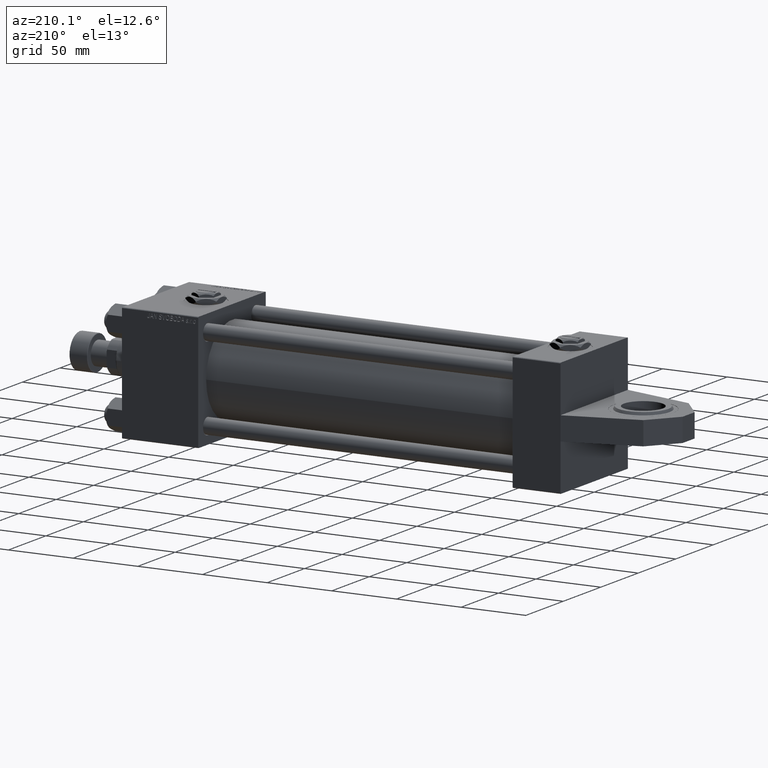
[diagram: clean part render]
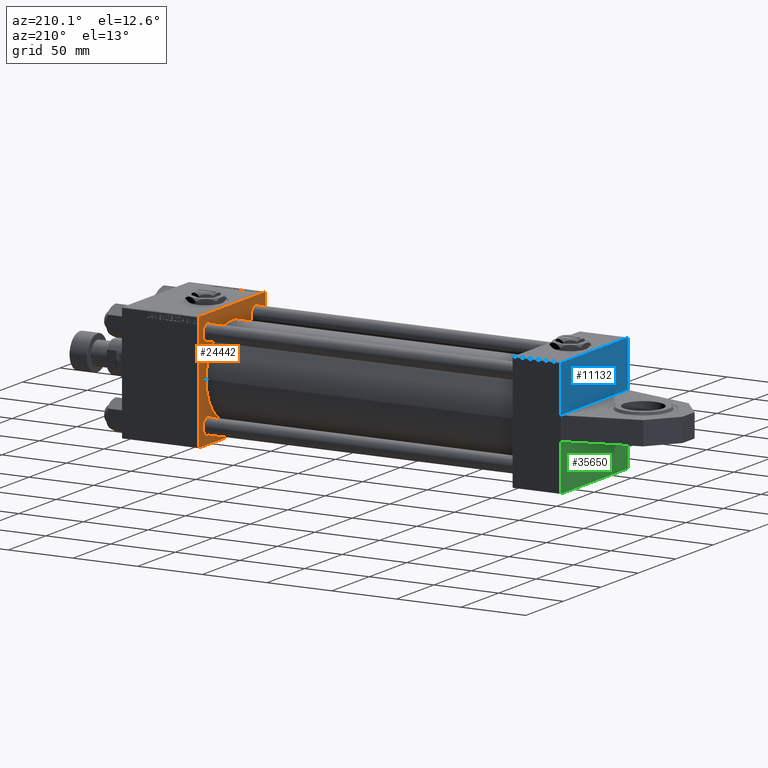
[diagram: same view with three faces highlighted in distinct colors, each labeled with its STEP entity id]
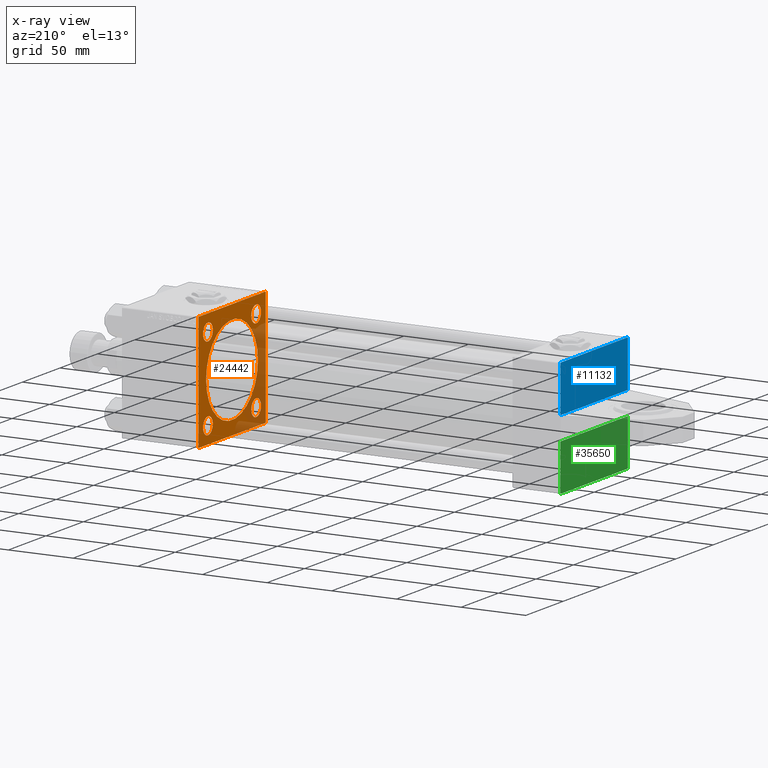
[diagram: x-ray of the same camera — body ghosted, the three highlighted faces saturated]
A machine part, auxiliary view with three faces highlighted in distinct colors.
The next image is the same camera in x-ray (body ghosted, the three faces saturated) — at least one of them is partly hidden behind the body in this view.
Their STEP definitions:

[orange] entity #24442 — the highlighted planar face has unit normal (-1, 0, 0).
#48 = VECTOR ( 'NONE', #40157, 999.9999999999998863 ) ;
#234 = CARTESIAN_POINT ( 'NONE',  ( 279.9999999999999432, 32.14999999999999147, -32.15000000000000568 ) ) ;
#705 = DIRECTION ( 'NONE',  ( 0.000000000000000000, 0.000000000000000000, 1.000000000000000000 ) ) ;
#901 = CIRCLE ( 'NONE', #43501, 34.50000000000000000 ) ;
#906 = ORIENTED_EDGE ( 'NONE', *, *, #39818, .T. ) ;
#1400 = EDGE_CURVE ( 'NONE', #43667, #47262, #18811, .T. ) ;
#2172 = ORIENTED_EDGE ( 'NONE', *, *, #45619, .T. ) ;
#2404 = DIRECTION ( 'NONE',  ( -0.000000000000000000, 0.000000000000000000, 1.000000000000000000 ) ) ;
#2462 = CARTESIAN_POINT ( 'NONE',  ( 279.9999999999999432, 1.622946243093158675E-15, -34.50000000000000000 ) ) ;
#2802 = LINE ( 'NONE', #27844, #51185 ) ;
#2904 = AXIS2_PLACEMENT_3D ( 'NONE', #34421, #46669, #39220 ) ;
#3422 = DIRECTION ( 'NONE',  ( 0.000000000000000000, 0.000000000000000000, -1.000000000000000000 ) ) ;
#3734 = CIRCLE ( 'NONE', #2904, 6.499999999999950262 ) ;
#3994 = EDGE_CURVE ( 'NONE', #47262, #14294, #27886, .T. ) ;
#5063 = FACE_BOUND ( 'NONE', #8463, .T. ) ;
#5587 = FACE_BOUND ( 'NONE', #47899, .T. ) ;
#5701 = DIRECTION ( 'NONE',  ( 0.000000000000000000, 0.7071067811865474617, -0.7071067811865474617 ) ) ;
#5934 = CARTESIAN_POINT ( 'NONE',  ( 279.9999999999999432, 32.14999999999999147, 25.65000000000005542 ) ) ;
#6033 = VERTEX_POINT ( 'NONE', #33334 ) ;
#6357 = CIRCLE ( 'NONE', #13137, 6.499999999999950262 ) ;
#6395 = VERTEX_POINT ( 'NONE', #40502 ) ;
#8463 = EDGE_LOOP ( 'NONE', ( #32519, #9893 ) ) ;
#8772 = EDGE_CURVE ( 'NONE', #31779, #49852, #18707, .T. ) ;
#9331 = DIRECTION ( 'NONE',  ( 0.000000000000000000, 0.000000000000000000, 1.000000000000000000 ) ) ;
#9655 = ORIENTED_EDGE ( 'NONE', *, *, #36992, .T. ) ;
#9893 = ORIENTED_EDGE ( 'NONE', *, *, #52363, .T. ) ;
#10071 = VERTEX_POINT ( 'NONE', #34544 ) ;
#10101 = PLANE ( 'NONE',  #34512 ) ;
#10115 = ORIENTED_EDGE ( 'NONE', *, *, #15650, .T. ) ;
#10124 = ORIENTED_EDGE ( 'NONE', *, *, #1400, .T. ) ;
#10393 = EDGE_LOOP ( 'NONE', ( #20154, #17511 ) ) ;
#11160 = DIRECTION ( 'NONE',  ( 0.000000000000000000, 0.000000000000000000, -1.000000000000000000 ) ) ;
#11192 = EDGE_CURVE ( 'NONE', #49852, #31779, #901, .T. ) ;
#11374 = ORIENTED_EDGE ( 'NONE', *, *, #3994, .T. ) ;
#11418 = LINE ( 'NONE', #38944, #16195 ) ;
#12345 = LINE ( 'NONE', #45144, #27456 ) ;
#12380 = CARTESIAN_POINT ( 'NONE',  ( 279.9999999999999432, -45.00000000000000000, 44.99999999999998579 ) ) ;
#12815 = CARTESIAN_POINT ( 'NONE',  ( 279.9999999999999432, -32.15000000000001279, -32.15000000000000568 ) ) ;
#13043 = FACE_BOUND ( 'NONE', #50534, .T. ) ;
#13137 = AXIS2_PLACEMENT_3D ( 'NONE', #27721, #36251, #39210 ) ;
#13534 = LINE ( 'NONE', #46073, #36129 ) ;
#13646 = EDGE_LOOP ( 'NONE', ( #9655, #50066 ) ) ;
#14074 = DIRECTION ( 'NONE',  ( 0.000000000000000000, 0.000000000000000000, 1.000000000000000000 ) ) ;
#14095 = DIRECTION ( 'NONE',  ( 0.000000000000000000, 0.000000000000000000, 1.000000000000000000 ) ) ;
#14294 = VERTEX_POINT ( 'NONE', #22006 ) ;
#14795 = CARTESIAN_POINT ( 'NONE',  ( 279.9999999999999432, 44.50000000000001421, -45.00000000000000000 ) ) ;
#14926 = EDGE_CURVE ( 'NONE', #51427, #6395, #19768, .T. ) ;
#15081 = CARTESIAN_POINT ( 'NONE',  ( 279.9999999999999432, -44.74999999999968736, -44.75000000000031264 ) ) ;
#15268 = CARTESIAN_POINT ( 'NONE',  ( 279.9999999999999432, -32.14999999999999147, 38.64999999999994174 ) ) ;
#15445 = VERTEX_POINT ( 'NONE', #41442 ) ;
#15650 = EDGE_CURVE ( 'NONE', #34557, #33022, #25747, .T. ) ;
#15877 = CARTESIAN_POINT ( 'NONE',  ( 279.9999999999999432, -32.14999999999999147, 25.65000000000004121 ) ) ;
#16075 = DIRECTION ( 'NONE',  ( -0.000000000000000000, 0.7071067811865474617, 0.7071067811865474617 ) ) ;
#16195 = VECTOR ( 'NONE', #11160, 1000.000000000000000 ) ;
#16204 = DIRECTION ( 'NONE',  ( 0.000000000000000000, 0.000000000000000000, -1.000000000000000000 ) ) ;
#16326 = VERTEX_POINT ( 'NONE', #48038 ) ;
#16401 = AXIS2_PLACEMENT_3D ( 'NONE', #30632, #47415, #14095 ) ;
#17511 = ORIENTED_EDGE ( 'NONE', *, *, #8772, .T. ) ;
#18076 = CARTESIAN_POINT ( 'NONE',  ( 279.9999999999999432, 32.14999999999999147, 32.15000000000000568 ) ) ;
#18707 = CIRCLE ( 'NONE', #41693, 34.50000000000000000 ) ;
#18811 = LINE ( 'NONE', #51333, #42559 ) ;
#18836 = VECTOR ( 'NONE', #5701, 1000.000000000000114 ) ;
#18934 = EDGE_LOOP ( 'NONE', ( #10124, #11374, #40816, #19046, #33303, #906, #37014, #2172 ) ) ;
#19046 = ORIENTED_EDGE ( 'NONE', *, *, #34707, .T. ) ;
#19144 = EDGE_CURVE ( 'NONE', #16326, #6033, #26636, .T. ) ;
#19768 = CIRCLE ( 'NONE', #37687, 6.499999999999950262 ) ;
#20154 = ORIENTED_EDGE ( 'NONE', *, *, #11192, .T. ) ;
#20875 = CIRCLE ( 'NONE', #48122, 6.499999999999895195 ) ;
#21316 = FACE_BOUND ( 'NONE', #10393, .T. ) ;
#21627 = ORIENTED_EDGE ( 'NONE', *, *, #44485, .T. ) ;
#21919 = VERTEX_POINT ( 'NONE', #34801 ) ;
#22006 = CARTESIAN_POINT ( 'NONE',  ( 279.9999999999999432, -44.99999999999999289, -44.49999999999997158 ) ) ;
#22391 = CIRCLE ( 'NONE', #31753, 6.499999999999895195 ) ;
#23033 = AXIS2_PLACEMENT_3D ( 'NONE', #234, #28480, #48203 ) ;
#24366 = DIRECTION ( 'NONE',  ( 0.000000000000000000, -1.000000000000000000, -1.541976423090495140E-16 ) ) ;
#24442 = ADVANCED_FACE ( 'NONE', ( #13043, #5587, #41590, #5063, #21316, #33596 ), #10101, .T. ) ;
#25222 = CARTESIAN_POINT ( 'NONE',  ( 279.9999999999999432, -32.15000000000001279, -32.15000000000000568 ) ) ;
#25747 = CIRCLE ( 'NONE', #47891, 6.499999999999950262 ) ;
#26636 = CIRCLE ( 'NONE', #16401, 6.499999999999888090 ) ;
#26923 = CARTESIAN_POINT ( 'NONE',  ( 279.9999999999999432, 0.000000000000000000, 0.000000000000000000 ) ) ;
#26931 = ORIENTED_EDGE ( 'NONE', *, *, #14926, .T. ) ;
#27456 = VECTOR ( 'NONE', #24366, 1000.000000000000000 ) ;
#27524 = CARTESIAN_POINT ( 'NONE',  ( 279.9999999999999432, -32.15000000000001279, -38.64999999999989910 ) ) ;
#27721 = CARTESIAN_POINT ( 'NONE',  ( 279.9999999999999432, -32.14999999999999147, 32.14999999999999147 ) ) ;
#27844 = CARTESIAN_POINT ( 'NONE',  ( 279.9999999999999432, -44.75000000000001421, 44.75000000000001421 ) ) ;
#27886 = LINE ( 'NONE', #15081, #48 ) ;
#28480 = DIRECTION ( 'NONE',  ( 1.000000000000000000, 0.000000000000000000, 0.000000000000000000 ) ) ;
#29949 = VERTEX_POINT ( 'NONE', #51402 ) ;
#30632 = CARTESIAN_POINT ( 'NONE',  ( 279.9999999999999432, 32.14999999999999147, -32.15000000000000568 ) ) ;
#30723 = CIRCLE ( 'NONE', #23033, 6.499999999999888090 ) ;
#31455 = ORIENTED_EDGE ( 'NONE', *, *, #47208, .T. ) ;
#31753 = AXIS2_PLACEMENT_3D ( 'NONE', #25222, #36719, #705 ) ;
#31779 = VERTEX_POINT ( 'NONE', #2462 ) ;
#32519 = ORIENTED_EDGE ( 'NONE', *, *, #42575, .T. ) ;
#32874 = EDGE_CURVE ( 'NONE', #21919, #14294, #36418, .T. ) ;
#33022 = VERTEX_POINT ( 'NONE', #15268 ) ;
#33303 = ORIENTED_EDGE ( 'NONE', *, *, #41837, .F. ) ;
#33334 = CARTESIAN_POINT ( 'NONE',  ( 279.9999999999999432, 32.14999999999999147, -25.65000000000011582 ) ) ;
#33596 = FACE_OUTER_BOUND ( 'NONE', #18934, .T. ) ;
#33972 = LINE ( 'NONE', #46491, #18836 ) ;
#34421 = CARTESIAN_POINT ( 'NONE',  ( 279.9999999999999432, 32.14999999999999147, 32.15000000000000568 ) ) ;
#34512 = AXIS2_PLACEMENT_3D ( 'NONE', #26923, #34924, #2404 ) ;
#34544 = CARTESIAN_POINT ( 'NONE',  ( 279.9999999999999432, -32.15000000000001279, -25.65000000000010871 ) ) ;
#34557 = VERTEX_POINT ( 'NONE', #15877 ) ;
#34635 = DIRECTION ( 'NONE',  ( -0.000000000000000000, -0.7071067811865474617, -0.7071067811865474617 ) ) ;
#34707 = EDGE_CURVE ( 'NONE', #21919, #48527, #2802, .T. ) ;
#34801 = CARTESIAN_POINT ( 'NONE',  ( 279.9999999999999432, -45.00000000000000000, 44.50000000000004263 ) ) ;
#34924 = DIRECTION ( 'NONE',  ( -1.000000000000000000, 0.000000000000000000, -0.000000000000000000 ) ) ;
#36129 = VECTOR ( 'NONE', #34635, 1000.000000000000114 ) ;
#36251 = DIRECTION ( 'NONE',  ( 1.000000000000000000, 0.000000000000000000, 0.000000000000000000 ) ) ;
#36418 = LINE ( 'NONE', #12380, #45705 ) ;
#36596 = DIRECTION ( 'NONE',  ( 0.000000000000000000, 0.000000000000000000, 1.000000000000000000 ) ) ;
#36719 = DIRECTION ( 'NONE',  ( 1.000000000000000000, 0.000000000000000000, 0.000000000000000000 ) ) ;
#36747 = CARTESIAN_POINT ( 'NONE',  ( 279.9999999999999432, -2.602085213965210642E-15, 0.000000000000000000 ) ) ;
#36775 = CARTESIAN_POINT ( 'NONE',  ( 279.9999999999999432, -2.602085213965210642E-15, 0.000000000000000000 ) ) ;
#36870 = EDGE_CURVE ( 'NONE', #29949, #15445, #11418, .T. ) ;
#36992 = EDGE_CURVE ( 'NONE', #6033, #16326, #30723, .T. ) ;
#37014 = ORIENTED_EDGE ( 'NONE', *, *, #36870, .T. ) ;
#37219 = DIRECTION ( 'NONE',  ( 0.000000000000000000, 7.709882115452478166E-17, -1.000000000000000000 ) ) ;
#37567 = CARTESIAN_POINT ( 'NONE',  ( 279.9999999999999432, -44.49999999999995737, -45.00000000000000000 ) ) ;
#37687 = AXIS2_PLACEMENT_3D ( 'NONE', #18076, #50602, #14074 ) ;
#38791 = CARTESIAN_POINT ( 'NONE',  ( 279.9999999999999432, 44.49999999999995737, 45.00000000000000000 ) ) ;
#38944 = CARTESIAN_POINT ( 'NONE',  ( 279.9999999999999432, 45.00000000000001421, 45.00000000000000000 ) ) ;
#39210 = DIRECTION ( 'NONE',  ( 0.000000000000000000, 0.000000000000000000, 1.000000000000000000 ) ) ;
#39220 = DIRECTION ( 'NONE',  ( 0.000000000000000000, 0.000000000000000000, 1.000000000000000000 ) ) ;
#39811 = VERTEX_POINT ( 'NONE', #38791 ) ;
#39818 = EDGE_CURVE ( 'NONE', #39811, #29949, #33972, .T. ) ;
#39822 = CARTESIAN_POINT ( 'NONE',  ( 279.9999999999999432, -2.602085213965210642E-15, 34.50000000000000000 ) ) ;
#40157 = DIRECTION ( 'NONE',  ( 0.000000000000000000, -0.7071067811865525687, 0.7071067811865425767 ) ) ;
#40502 = CARTESIAN_POINT ( 'NONE',  ( 279.9999999999999432, 32.14999999999999147, 38.64999999999995595 ) ) ;
#40816 = ORIENTED_EDGE ( 'NONE', *, *, #32874, .F. ) ;
#40855 = CARTESIAN_POINT ( 'NONE',  ( 279.9999999999999432, -32.14999999999999147, 32.14999999999999147 ) ) ;
#41442 = CARTESIAN_POINT ( 'NONE',  ( 279.9999999999999432, 45.00000000000001421, -44.49999999999997158 ) ) ;
#41590 = FACE_BOUND ( 'NONE', #13646, .T. ) ;
#41693 = AXIS2_PLACEMENT_3D ( 'NONE', #36775, #48215, #16204 ) ;
#41837 = EDGE_CURVE ( 'NONE', #39811, #48527, #12345, .T. ) ;
#42559 = VECTOR ( 'NONE', #46551, 1000.000000000000000 ) ;
#42575 = EDGE_CURVE ( 'NONE', #10071, #44284, #22391, .T. ) ;
#43501 = AXIS2_PLACEMENT_3D ( 'NONE', #36747, #48186, #3422 ) ;
#43667 = VERTEX_POINT ( 'NONE', #14795 ) ;
#44284 = VERTEX_POINT ( 'NONE', #27524 ) ;
#44485 = EDGE_CURVE ( 'NONE', #6395, #51427, #3734, .T. ) ;
#44957 = CARTESIAN_POINT ( 'NONE',  ( 279.9999999999999432, -44.50000000000002842, 44.99999999999998579 ) ) ;
#45144 = CARTESIAN_POINT ( 'NONE',  ( 279.9999999999999432, 45.00000000000001421, 45.00000000000000000 ) ) ;
#45619 = EDGE_CURVE ( 'NONE', #15445, #43667, #13534, .T. ) ;
#45705 = VECTOR ( 'NONE', #37219, 1000.000000000000000 ) ;
#46073 = CARTESIAN_POINT ( 'NONE',  ( 279.9999999999999432, 44.75000000000000000, -44.75000000000000000 ) ) ;
#46491 = CARTESIAN_POINT ( 'NONE',  ( 279.9999999999999432, 44.74999999999997158, 44.74999999999997158 ) ) ;
#46551 = DIRECTION ( 'NONE',  ( 0.000000000000000000, -1.000000000000000000, 0.000000000000000000 ) ) ;
#46669 = DIRECTION ( 'NONE',  ( 1.000000000000000000, 0.000000000000000000, 0.000000000000000000 ) ) ;
#47208 = EDGE_CURVE ( 'NONE', #33022, #34557, #6357, .T. ) ;
#47262 = VERTEX_POINT ( 'NONE', #37567 ) ;
#47415 = DIRECTION ( 'NONE',  ( 1.000000000000000000, 0.000000000000000000, 0.000000000000000000 ) ) ;
#47891 = AXIS2_PLACEMENT_3D ( 'NONE', #40855, #52306, #36596 ) ;
#47899 = EDGE_LOOP ( 'NONE', ( #21627, #26931 ) ) ;
#48038 = CARTESIAN_POINT ( 'NONE',  ( 279.9999999999999432, 32.14999999999999147, -38.64999999999989200 ) ) ;
#48122 = AXIS2_PLACEMENT_3D ( 'NONE', #12815, #49342, #9331 ) ;
#48186 = DIRECTION ( 'NONE',  ( 1.000000000000000000, 0.000000000000000000, 0.000000000000000000 ) ) ;
#48203 = DIRECTION ( 'NONE',  ( 0.000000000000000000, 0.000000000000000000, 1.000000000000000000 ) ) ;
#48215 = DIRECTION ( 'NONE',  ( 1.000000000000000000, 0.000000000000000000, 0.000000000000000000 ) ) ;
#48527 = VERTEX_POINT ( 'NONE', #44957 ) ;
#49342 = DIRECTION ( 'NONE',  ( 1.000000000000000000, 0.000000000000000000, 0.000000000000000000 ) ) ;
#49852 = VERTEX_POINT ( 'NONE', #39822 ) ;
#50066 = ORIENTED_EDGE ( 'NONE', *, *, #19144, .T. ) ;
#50534 = EDGE_LOOP ( 'NONE', ( #31455, #10115 ) ) ;
#50602 = DIRECTION ( 'NONE',  ( 1.000000000000000000, 0.000000000000000000, 0.000000000000000000 ) ) ;
#51185 = VECTOR ( 'NONE', #16075, 1000.000000000000114 ) ;
#51333 = CARTESIAN_POINT ( 'NONE',  ( 279.9999999999999432, 45.00000000000001421, -45.00000000000000000 ) ) ;
#51402 = CARTESIAN_POINT ( 'NONE',  ( 279.9999999999999432, 45.00000000000001421, 44.49999999999994316 ) ) ;
#51427 = VERTEX_POINT ( 'NONE', #5934 ) ;
#52306 = DIRECTION ( 'NONE',  ( 1.000000000000000000, 0.000000000000000000, 0.000000000000000000 ) ) ;
#52363 = EDGE_CURVE ( 'NONE', #44284, #10071, #20875, .T. ) ;

[blue] entity #11132 — the highlighted planar face has unit normal (-1, 0, 0).
#2561 = DIRECTION ( 'NONE',  ( 0.000000000000000000, 0.7071067811865474617, -0.7071067811865474617 ) ) ;
#6182 = LINE ( 'NONE', #46439, #34629 ) ;
#6513 = CARTESIAN_POINT ( 'NONE',  ( 0.000000000000000000, 44.49999999999998579, -44.99999999999998579 ) ) ;
#7086 = LINE ( 'NONE', #27885, #29470 ) ;
#7659 = VERTEX_POINT ( 'NONE', #9294 ) ;
#7859 = DIRECTION ( 'NONE',  ( -0.000000000000000000, -0.7071067811865474617, -0.7071067811865474617 ) ) ;
#8128 = VERTEX_POINT ( 'NONE', #6513 ) ;
#9294 = CARTESIAN_POINT ( 'NONE',  ( 0.000000000000000000, 44.99999999999998579, -44.49999999999995737 ) ) ;
#11132 = ADVANCED_FACE ( 'NONE', ( #12182 ), #52703, .T. ) ;
#12182 = FACE_OUTER_BOUND ( 'NONE', #21641, .T. ) ;
#14207 = EDGE_CURVE ( 'NONE', #21255, #46996, #48953, .T. ) ;
#15287 = EDGE_CURVE ( 'NONE', #16226, #30410, #22814, .T. ) ;
#15458 = VECTOR ( 'NONE', #36987, 1000.000000000000000 ) ;
#15548 = LINE ( 'NONE', #27311, #23040 ) ;
#16226 = VERTEX_POINT ( 'NONE', #48618 ) ;
#19607 = LINE ( 'NONE', #19865, #25251 ) ;
#19865 = CARTESIAN_POINT ( 'NONE',  ( 0.000000000000000000, 44.99999999999998579, -44.99999999999998579 ) ) ;
#21255 = VERTEX_POINT ( 'NONE', #24818 ) ;
#21641 = EDGE_LOOP ( 'NONE', ( #46020, #50193, #32650, #42821, #34469, #22305 ) ) ;
#22305 = ORIENTED_EDGE ( 'NONE', *, *, #27634, .T. ) ;
#22814 = LINE ( 'NONE', #47333, #39404 ) ;
#23040 = VECTOR ( 'NONE', #43305, 1000.000000000000000 ) ;
#23937 = DIRECTION ( 'NONE',  ( -1.000000000000000000, 0.000000000000000000, -0.000000000000000000 ) ) ;
#24725 = AXIS2_PLACEMENT_3D ( 'NONE', #41000, #23937, #40480 ) ;
#24818 = CARTESIAN_POINT ( 'NONE',  ( 0.000000000000000000, 9.000000000000000000, 45.00000000000000000 ) ) ;
#25251 = VECTOR ( 'NONE', #52124, 1000.000000000000000 ) ;
#26720 = DIRECTION ( 'NONE',  ( 0.000000000000000000, -1.000000000000000000, -1.541976423090495387E-16 ) ) ;
#27311 = CARTESIAN_POINT ( 'NONE',  ( 0.000000000000000000, 44.99999999999998579, 45.00000000000001421 ) ) ;
#27634 = EDGE_CURVE ( 'NONE', #8128, #46996, #19607, .T. ) ;
#27885 = CARTESIAN_POINT ( 'NONE',  ( 0.000000000000000000, 44.74999999999998579, -44.74999999999998579 ) ) ;
#28361 = EDGE_CURVE ( 'NONE', #7659, #8128, #7086, .T. ) ;
#28919 = CARTESIAN_POINT ( 'NONE',  ( 0.000000000000000000, 44.99999999999998579, 44.50000000000001421 ) ) ;
#29470 = VECTOR ( 'NONE', #7859, 1000.000000000000114 ) ;
#30410 = VERTEX_POINT ( 'NONE', #28919 ) ;
#31748 = EDGE_CURVE ( 'NONE', #16226, #21255, #6182, .T. ) ;
#32650 = ORIENTED_EDGE ( 'NONE', *, *, #15287, .T. ) ;
#33939 = CARTESIAN_POINT ( 'NONE',  ( 0.000000000000000000, 9.000000000000000000, -45.00000000000000000 ) ) ;
#33955 = EDGE_CURVE ( 'NONE', #30410, #7659, #15548, .T. ) ;
#34469 = ORIENTED_EDGE ( 'NONE', *, *, #28361, .T. ) ;
#34629 = VECTOR ( 'NONE', #26720, 1000.000000000000000 ) ;
#36454 = CARTESIAN_POINT ( 'NONE',  ( 0.000000000000000000, 9.000000000000000000, 45.00000000000000000 ) ) ;
#36987 = DIRECTION ( 'NONE',  ( 0.000000000000000000, 0.000000000000000000, -1.000000000000000000 ) ) ;
#39404 = VECTOR ( 'NONE', #2561, 1000.000000000000114 ) ;
#40480 = DIRECTION ( 'NONE',  ( -0.000000000000000000, 0.000000000000000000, 1.000000000000000000 ) ) ;
#41000 = CARTESIAN_POINT ( 'NONE',  ( 0.000000000000000000, 0.000000000000000000, 0.000000000000000000 ) ) ;
#42821 = ORIENTED_EDGE ( 'NONE', *, *, #33955, .T. ) ;
#43305 = DIRECTION ( 'NONE',  ( 0.000000000000000000, 0.000000000000000000, -1.000000000000000000 ) ) ;
#46020 = ORIENTED_EDGE ( 'NONE', *, *, #14207, .F. ) ;
#46439 = CARTESIAN_POINT ( 'NONE',  ( 0.000000000000000000, 44.99999999999998579, 45.00000000000001421 ) ) ;
#46996 = VERTEX_POINT ( 'NONE', #33939 ) ;
#47333 = CARTESIAN_POINT ( 'NONE',  ( 0.000000000000000000, 44.74999999999999289, 44.74999999999999289 ) ) ;
#48618 = CARTESIAN_POINT ( 'NONE',  ( 0.000000000000000000, 44.49999999999998579, 45.00000000000001421 ) ) ;
#48953 = LINE ( 'NONE', #36454, #15458 ) ;
#50193 = ORIENTED_EDGE ( 'NONE', *, *, #31748, .F. ) ;
#52124 = DIRECTION ( 'NONE',  ( 0.000000000000000000, -1.000000000000000000, -1.541976423090495633E-16 ) ) ;
#52703 = PLANE ( 'NONE',  #24725 ) ;

[green] entity #35650 — the highlighted planar face has unit normal (-1, 0, 0).
#216 = VERTEX_POINT ( 'NONE', #43929 ) ;
#235 = LINE ( 'NONE', #28752, #16751 ) ;
#437 = CARTESIAN_POINT ( 'NONE',  ( 0.000000000000000000, -9.000000000000000000, 45.00000000000000000 ) ) ;
#532 = CARTESIAN_POINT ( 'NONE',  ( 0.000000000000000000, -44.74999999999998579, -44.74999999999998579 ) ) ;
#2329 = ORIENTED_EDGE ( 'NONE', *, *, #4524, .F. ) ;
#4524 = EDGE_CURVE ( 'NONE', #41640, #25734, #15314, .T. ) ;
#5201 = VECTOR ( 'NONE', #46352, 1000.000000000000114 ) ;
#8149 = CARTESIAN_POINT ( 'NONE',  ( 0.000000000000000000, -44.49999999999995737, 45.00000000000000000 ) ) ;
#8342 = LINE ( 'NONE', #40636, #28406 ) ;
#8758 = VERTEX_POINT ( 'NONE', #36507 ) ;
#9815 = LINE ( 'NONE', #532, #5201 ) ;
#10147 = DIRECTION ( 'NONE',  ( -0.000000000000000000, 0.000000000000000000, 1.000000000000000000 ) ) ;
#10543 = DIRECTION ( 'NONE',  ( 0.000000000000000000, -1.000000000000000000, -1.541976423090495387E-16 ) ) ;
#11993 = ORIENTED_EDGE ( 'NONE', *, *, #39087, .T. ) ;
#12132 = DIRECTION ( 'NONE',  ( 0.000000000000000000, 0.000000000000000000, -1.000000000000000000 ) ) ;
#12845 = VECTOR ( 'NONE', #10543, 1000.000000000000000 ) ;
#12986 = ORIENTED_EDGE ( 'NONE', *, *, #21975, .T. ) ;
#13732 = VERTEX_POINT ( 'NONE', #49853 ) ;
#15314 = LINE ( 'NONE', #43873, #12845 ) ;
#16751 = VECTOR ( 'NONE', #45003, 1000.000000000000114 ) ;
#18435 = DIRECTION ( 'NONE',  ( -1.000000000000000000, 0.000000000000000000, -0.000000000000000000 ) ) ;
#18717 = AXIS2_PLACEMENT_3D ( 'NONE', #42712, #18435, #10147 ) ;
#19193 = ORIENTED_EDGE ( 'NONE', *, *, #24814, .T. ) ;
#19265 = EDGE_CURVE ( 'NONE', #8758, #21946, #52704, .T. ) ;
#21946 = VERTEX_POINT ( 'NONE', #44098 ) ;
#21975 = EDGE_CURVE ( 'NONE', #13732, #216, #8342, .T. ) ;
#23114 = CARTESIAN_POINT ( 'NONE',  ( 0.000000000000000000, -9.000000000000000000, 45.00000000000000000 ) ) ;
#24472 = CARTESIAN_POINT ( 'NONE',  ( 0.000000000000000000, -45.00000000000000711, 45.00000000000000000 ) ) ;
#24625 = DIRECTION ( 'NONE',  ( 0.000000000000000000, -1.000000000000000000, -1.541976423090495633E-16 ) ) ;
#24814 = EDGE_CURVE ( 'NONE', #41640, #13732, #48664, .T. ) ;
#25734 = VERTEX_POINT ( 'NONE', #8149 ) ;
#25787 = VECTOR ( 'NONE', #36222, 1000.000000000000000 ) ;
#28406 = VECTOR ( 'NONE', #24625, 1000.000000000000000 ) ;
#28752 = CARTESIAN_POINT ( 'NONE',  ( -0.000000000000000000, -44.75000000000029843, 44.74999999999967315 ) ) ;
#28777 = ORIENTED_EDGE ( 'NONE', *, *, #19265, .F. ) ;
#29024 = EDGE_CURVE ( 'NONE', #8758, #25734, #235, .T. ) ;
#31365 = FACE_OUTER_BOUND ( 'NONE', #36319, .T. ) ;
#35650 = ADVANCED_FACE ( 'NONE', ( #31365 ), #41634, .T. ) ;
#36222 = DIRECTION ( 'NONE',  ( 0.000000000000000000, 7.709882115452476934E-17, -1.000000000000000000 ) ) ;
#36319 = EDGE_LOOP ( 'NONE', ( #2329, #19193, #12986, #11993, #28777, #42164 ) ) ;
#36507 = CARTESIAN_POINT ( 'NONE',  ( 0.000000000000000000, -45.00000000000000711, 44.49999999999997158 ) ) ;
#39087 = EDGE_CURVE ( 'NONE', #216, #21946, #9815, .T. ) ;
#40636 = CARTESIAN_POINT ( 'NONE',  ( 0.000000000000000000, 44.99999999999998579, -44.99999999999998579 ) ) ;
#41634 = PLANE ( 'NONE',  #18717 ) ;
#41640 = VERTEX_POINT ( 'NONE', #437 ) ;
#42164 = ORIENTED_EDGE ( 'NONE', *, *, #29024, .T. ) ;
#42712 = CARTESIAN_POINT ( 'NONE',  ( 0.000000000000000000, 0.000000000000000000, 0.000000000000000000 ) ) ;
#43873 = CARTESIAN_POINT ( 'NONE',  ( 0.000000000000000000, 44.99999999999998579, 45.00000000000001421 ) ) ;
#43929 = CARTESIAN_POINT ( 'NONE',  ( 0.000000000000000000, -44.49999999999995737, -45.00000000000000000 ) ) ;
#44098 = CARTESIAN_POINT ( 'NONE',  ( 0.000000000000000000, -45.00000000000000000, -44.49999999999995737 ) ) ;
#45003 = DIRECTION ( 'NONE',  ( -0.000000000000000000, 0.7071067811865425767, 0.7071067811865524577 ) ) ;
#46352 = DIRECTION ( 'NONE',  ( 0.000000000000000000, -0.7071067811865474617, 0.7071067811865474617 ) ) ;
#48664 = LINE ( 'NONE', #23114, #48951 ) ;
#48951 = VECTOR ( 'NONE', #12132, 1000.000000000000000 ) ;
#49853 = CARTESIAN_POINT ( 'NONE',  ( 0.000000000000000000, -8.999999999999987566, -44.99999999999999289 ) ) ;
#52704 = LINE ( 'NONE', #24472, #25787 ) ;